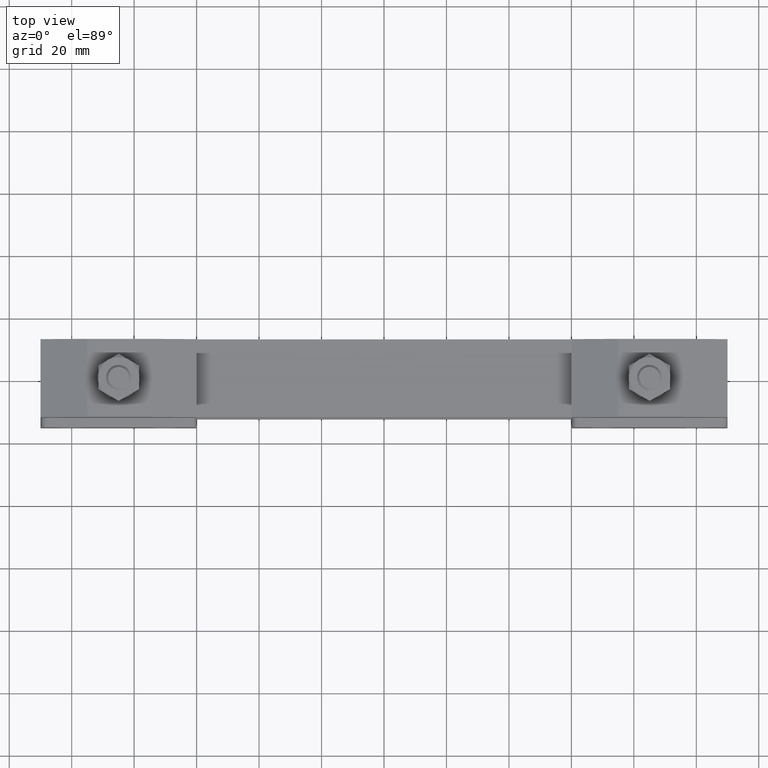
[diagram: clean part render]
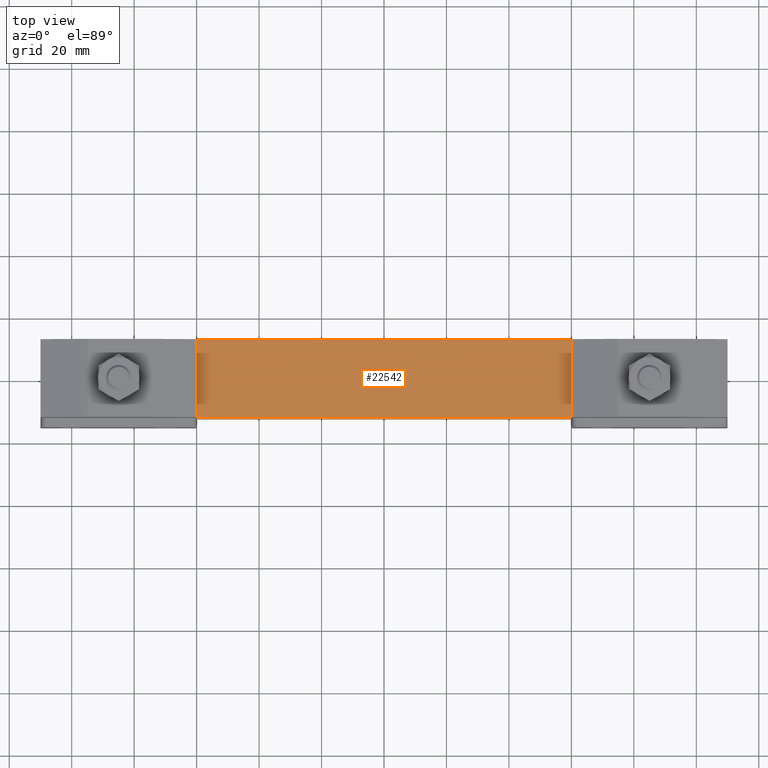
[diagram: same view with one face highlighted and labeled with its STEP entity id]
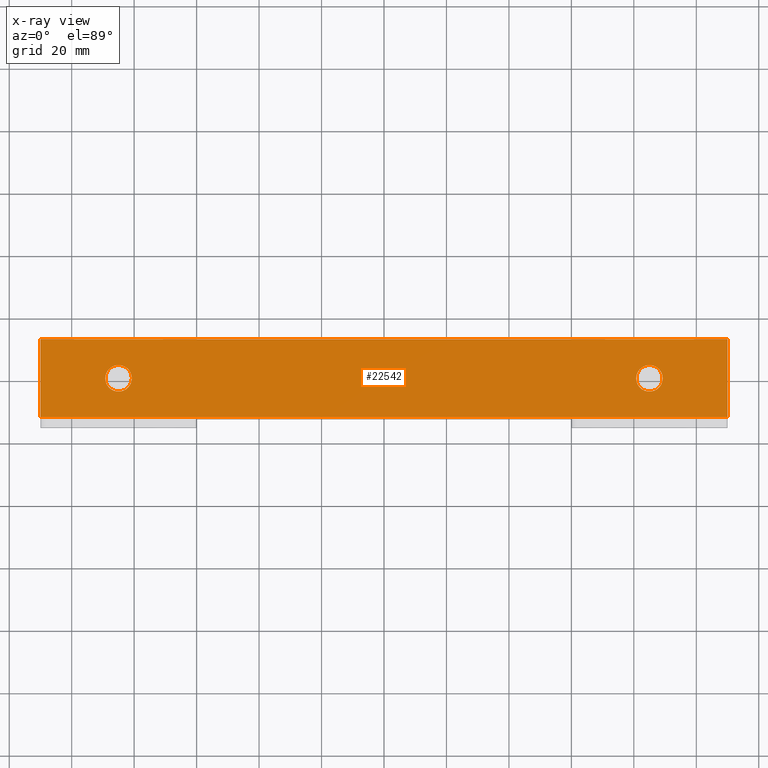
[diagram: x-ray of the same camera — body ghosted, the highlighted face saturated]
A machine part, top view. The second image highlights one B-rep face of the part: STEP entity #22542.
The next image is the same camera in x-ray: the body ghosted, the highlighted face saturated — about 0% of this face is hidden behind the body in this view.
In plain terms, the highlighted planar face has unit normal (0, 0, 1).
Its self-contained STEP definition (entity closure, byte-faithful):
#215 = CARTESIAN_POINT ( 'NONE',  ( -85.00000000000000000, -1.302668910241332000E-015, 33.00000000000000000 ) ) ;
#438 = CARTESIAN_POINT ( 'NONE',  ( -110.0000000000000000, 12.50000000000000000, 33.00000000000000000 ) ) ;
#727 = VERTEX_POINT ( 'NONE', #8517 ) ;
#786 = DIRECTION ( 'NONE',  ( 1.000000000000000000, 0.0000000000000000000, 0.0000000000000000000 ) ) ;
#868 = EDGE_CURVE ( 'NONE', #727, #3184, #5197, .T. ) ;
#1015 = DIRECTION ( 'NONE',  ( 0.0000000000000000000, 0.0000000000000000000, -1.000000000000000000 ) ) ;
#1743 = CARTESIAN_POINT ( 'NONE',  ( 110.0000000000000000, 12.50000000000000000, 33.00000000000000000 ) ) ;
#1813 = ORIENTED_EDGE ( 'NONE', *, *, #3084, .T. ) ;
#2139 = CARTESIAN_POINT ( 'NONE',  ( -80.75000000000000000, -7.821940206037071300E-016, 33.00000000000000000 ) ) ;
#2199 = DIRECTION ( 'NONE',  ( 0.0000000000000000000, -1.000000000000000000, 0.0000000000000000000 ) ) ;
#2478 = VERTEX_POINT ( 'NONE', #2139 ) ;
#2488 = DIRECTION ( 'NONE',  ( 0.0000000000000000000, 0.0000000000000000000, 1.000000000000000000 ) ) ;
#2919 = EDGE_CURVE ( 'NONE', #16886, #12251, #18628, .T. ) ;
#2949 = DIRECTION ( 'NONE',  ( -1.000000000000000000, 0.0000000000000000000, 0.0000000000000000000 ) ) ;
#3009 = DIRECTION ( 'NONE',  ( -1.000000000000000000, 0.0000000000000000000, 0.0000000000000000000 ) ) ;
#3084 = EDGE_CURVE ( 'NONE', #20031, #2478, #10011, .T. ) ;
#3184 = VERTEX_POINT ( 'NONE', #21283 ) ;
#3800 = LINE ( 'NONE', #12096, #12640 ) ;
#3804 = EDGE_CURVE ( 'NONE', #13380, #727, #17421, .T. ) ;
#3983 = VECTOR ( 'NONE', #2199, 1000.000000000000000 ) ;
#4245 = PLANE ( 'NONE',  #8183 ) ;
#4926 = EDGE_CURVE ( 'NONE', #2478, #20031, #8968, .T. ) ;
#5006 = CARTESIAN_POINT ( 'NONE',  ( -85.00000000000000000, -1.302668910241332000E-015, 33.00000000000000000 ) ) ;
#5010 = FACE_OUTER_BOUND ( 'NONE', #16257, .T. ) ;
#5082 = DIRECTION ( 'NONE',  ( 0.0000000000000000000, 0.0000000000000000000, -1.000000000000000000 ) ) ;
#5197 = LINE ( 'NONE', #1743, #22070 ) ;
#5403 = DIRECTION ( 'NONE',  ( 0.0000000000000000000, 0.0000000000000000000, -1.000000000000000000 ) ) ;
#6391 = AXIS2_PLACEMENT_3D ( 'NONE', #215, #5403, #21379 ) ;
#6494 = DIRECTION ( 'NONE',  ( 1.000000000000000000, 0.0000000000000000000, 0.0000000000000000000 ) ) ;
#7163 = AXIS2_PLACEMENT_3D ( 'NONE', #16884, #1015, #2949 ) ;
#8183 = AXIS2_PLACEMENT_3D ( 'NONE', #9438, #2488, #786 ) ;
#8517 = CARTESIAN_POINT ( 'NONE',  ( 110.0000000000000000, -12.50000000000000000, 33.00000000000000000 ) ) ;
#8653 = CARTESIAN_POINT ( 'NONE',  ( 89.25000000000001400, 2.003611399437672300E-014, 33.00000000000000000 ) ) ;
#8825 = ORIENTED_EDGE ( 'NONE', *, *, #12239, .T. ) ;
#8831 = DIRECTION ( 'NONE',  ( 0.0000000000000000000, 1.000000000000000000, 0.0000000000000000000 ) ) ;
#8968 = CIRCLE ( 'NONE', #6391, 4.250000000000003600 ) ;
#9143 = AXIS2_PLACEMENT_3D ( 'NONE', #5006, #5082, #17714 ) ;
#9438 = CARTESIAN_POINT ( 'NONE',  ( -110.0000000000000000, -12.50000000000000000, 33.00000000000000000 ) ) ;
#10011 = CIRCLE ( 'NONE', #9143, 4.250000000000003600 ) ;
#10163 = CARTESIAN_POINT ( 'NONE',  ( 85.00000000000000000, 1.951563910473909900E-014, 33.00000000000000000 ) ) ;
#11160 = CARTESIAN_POINT ( 'NONE',  ( -110.0000000000000000, -12.50000000000000000, 33.00000000000000000 ) ) ;
#11241 = CARTESIAN_POINT ( 'NONE',  ( 80.75000000000000000, 1.951563910473909900E-014, 33.00000000000000000 ) ) ;
#11999 = EDGE_LOOP ( 'NONE', ( #15445, #17835 ) ) ;
#12017 = DIRECTION ( 'NONE',  ( -1.000000000000000000, 5.519574696289839900E-017, 0.0000000000000000000 ) ) ;
#12096 = CARTESIAN_POINT ( 'NONE',  ( -110.0000000000000000, 12.50000000000000000, 33.00000000000000000 ) ) ;
#12239 = EDGE_CURVE ( 'NONE', #3184, #21371, #3800, .T. ) ;
#12251 = VERTEX_POINT ( 'NONE', #8653 ) ;
#12640 = VECTOR ( 'NONE', #12017, 1000.000000000000000 ) ;
#12677 = AXIS2_PLACEMENT_3D ( 'NONE', #10163, #22547, #3009 ) ;
#13357 = ORIENTED_EDGE ( 'NONE', *, *, #15480, .T. ) ;
#13380 = VERTEX_POINT ( 'NONE', #11160 ) ;
#15445 = ORIENTED_EDGE ( 'NONE', *, *, #2919, .T. ) ;
#15478 = CIRCLE ( 'NONE', #7163, 4.250000000000003600 ) ;
#15480 = EDGE_CURVE ( 'NONE', #21371, #13380, #16394, .T. ) ;
#16257 = EDGE_LOOP ( 'NONE', ( #13357, #19918, #20294, #8825 ) ) ;
#16279 = EDGE_LOOP ( 'NONE', ( #1813, #21018 ) ) ;
#16394 = LINE ( 'NONE', #19692, #3983 ) ;
#16884 = CARTESIAN_POINT ( 'NONE',  ( 85.00000000000000000, 1.951563910473909900E-014, 33.00000000000000000 ) ) ;
#16886 = VERTEX_POINT ( 'NONE', #11241 ) ;
#17406 = FACE_BOUND ( 'NONE', #11999, .T. ) ;
#17421 = LINE ( 'NONE', #20383, #21304 ) ;
#17714 = DIRECTION ( 'NONE',  ( -1.000000000000000000, 0.0000000000000000000, 0.0000000000000000000 ) ) ;
#17835 = ORIENTED_EDGE ( 'NONE', *, *, #22690, .T. ) ;
#18628 = CIRCLE ( 'NONE', #12677, 4.250000000000003600 ) ;
#19071 = FACE_BOUND ( 'NONE', #16279, .T. ) ;
#19692 = CARTESIAN_POINT ( 'NONE',  ( -110.0000000000000000, 12.50000000000000000, 33.00000000000000000 ) ) ;
#19918 = ORIENTED_EDGE ( 'NONE', *, *, #3804, .T. ) ;
#20031 = VERTEX_POINT ( 'NONE', #22420 ) ;
#20294 = ORIENTED_EDGE ( 'NONE', *, *, #868, .T. ) ;
#20383 = CARTESIAN_POINT ( 'NONE',  ( -110.0000000000000000, -12.50000000000000000, 33.00000000000000000 ) ) ;
#21018 = ORIENTED_EDGE ( 'NONE', *, *, #4926, .T. ) ;
#21283 = CARTESIAN_POINT ( 'NONE',  ( 110.0000000000000000, 12.50000000000000000, 33.00000000000000000 ) ) ;
#21304 = VECTOR ( 'NONE', #6494, 1000.000000000000000 ) ;
#21371 = VERTEX_POINT ( 'NONE', #438 ) ;
#21379 = DIRECTION ( 'NONE',  ( -1.000000000000000000, 0.0000000000000000000, 0.0000000000000000000 ) ) ;
#22070 = VECTOR ( 'NONE', #8831, 1000.000000000000000 ) ;
#22420 = CARTESIAN_POINT ( 'NONE',  ( -89.25000000000001400, -1.302668910241332000E-015, 33.00000000000000000 ) ) ;
#22542 = ADVANCED_FACE ( 'NONE', ( #19071, #17406, #5010 ), #4245, .T. ) ;
#22547 = DIRECTION ( 'NONE',  ( 0.0000000000000000000, 0.0000000000000000000, -1.000000000000000000 ) ) ;
#22690 = EDGE_CURVE ( 'NONE', #12251, #16886, #15478, .T. ) ;